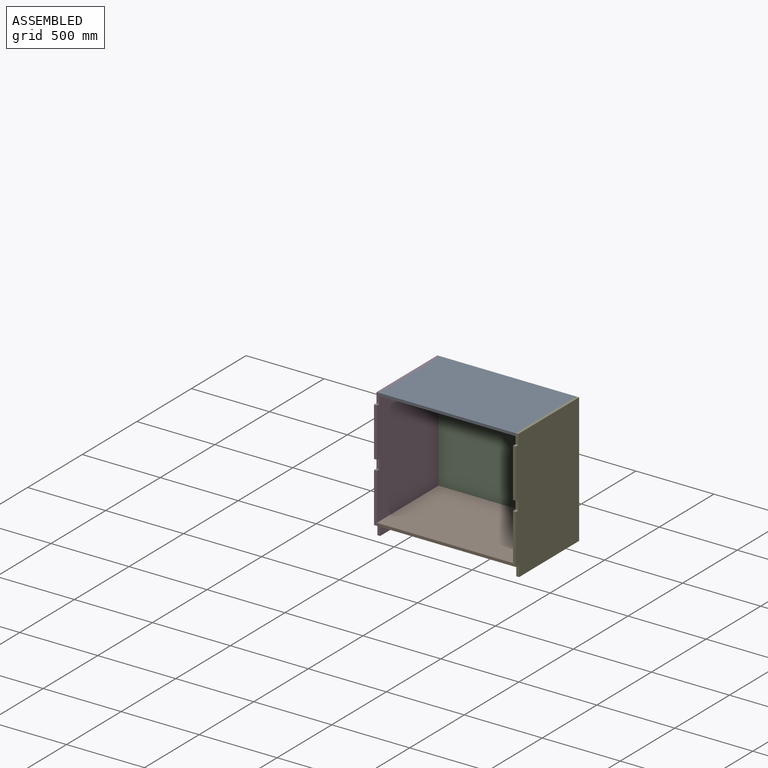
[diagram: assembled view]
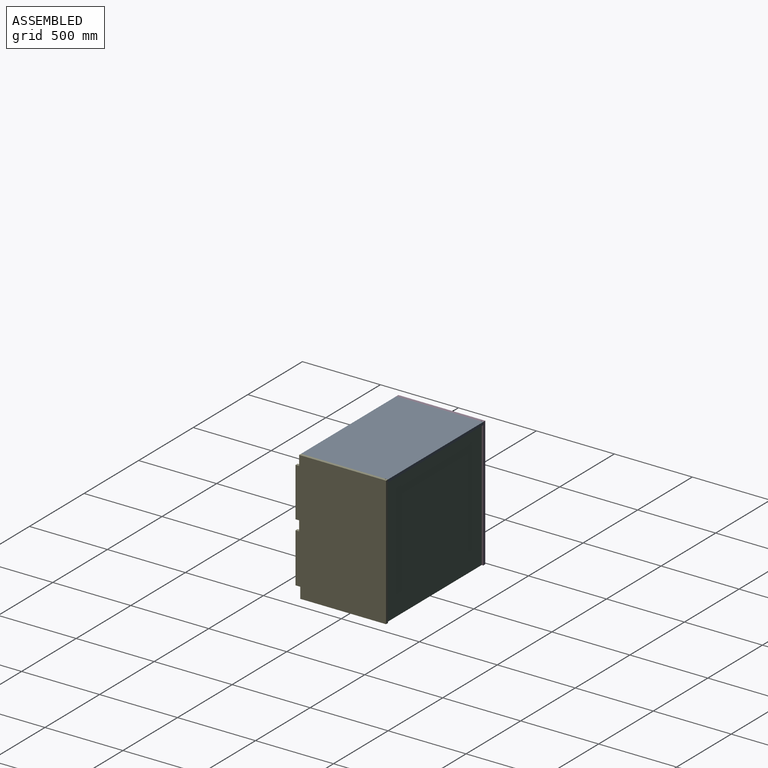
[diagram: assembled view, second angle]
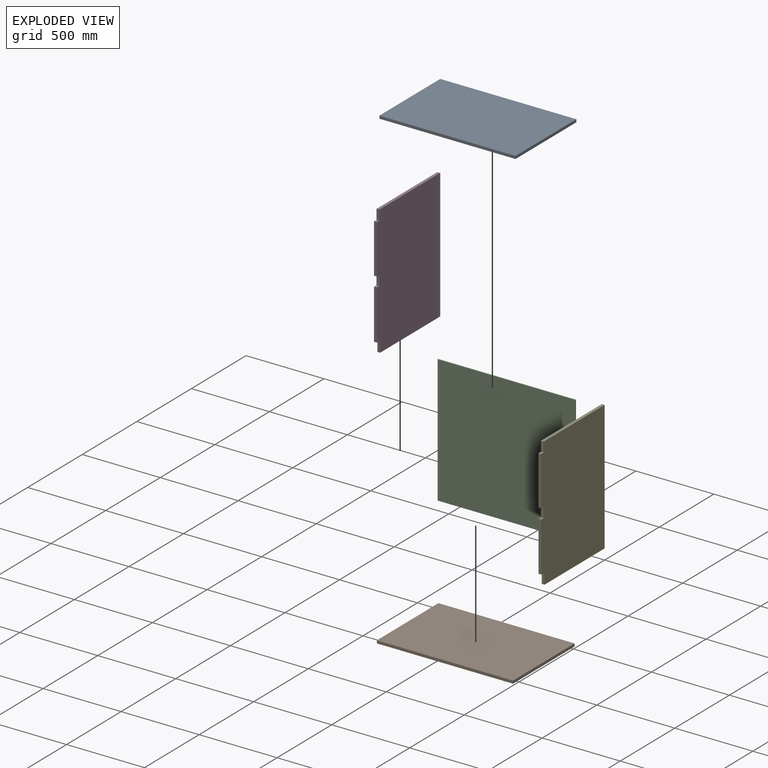
[diagram: exploded view]
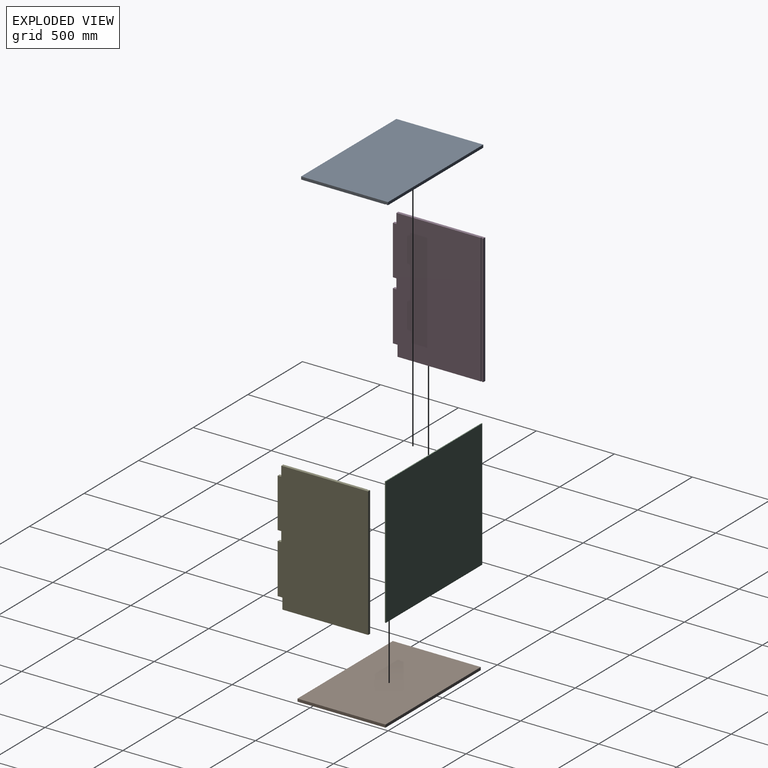
[diagram: exploded view, second angle]
ASSEMBLY  parts=5 mates=12
PART A: 10 faces, bbox 873x557x18 mm
  f0: plane 873x10mm, normal (0,0,-1), area 8730mm2, adj f1,f2,f3,f8
  f1: plane 557x18mm, normal (1,0,0), area 9996mm2, adj f0,f2,f4,f5,f6,f7,f8,f9
  f2: plane 873x18mm, normal (0,1,0), area 15714mm2, adj f0,f1,f3,f5
  f3: plane 557x18mm, normal (-1,0,0), area 9996mm2, adj f0,f2,f4,f5,f6,f7,f8,f9
  f4: plane 873x18mm, normal (0,-1,0), area 15714mm2, adj f1,f3,f5,f6
  f5: plane 873x557mm, normal (0,0,1), area 486261mm2, adj f1,f2,f3,f4
  f6: plane 873x541mm, normal (0,0,-1), area 472293mm2, adj f1,f3,f4,f7
  f7: plane 873x5mm, normal (0,1,0), area 4365mm2, adj f1,f3,f6,f9
  f8: plane 873x5mm, normal (0,-1,0), area 4365mm2, adj f0,f1,f3,f9
  f9: plane 873x6mm, normal (0,0,-1), area 5238mm2, adj f1,f3,f7,f8
PART B: 6 faces, bbox 873x564x18 mm
  f0: plane 564x18mm, normal (-1,0,0), area 10152mm2, adj f1,f3,f4,f5
  f1: plane 873x18mm, normal (0,-1,0), area 15714mm2, adj f0,f2,f4,f5
  f2: plane 564x18mm, normal (1,0,0), area 10152mm2, adj f1,f3,f4,f5
  f3: plane 873x18mm, normal (0,1,0), area 15714mm2, adj f0,f2,f4,f5
  f4: plane 873x564mm, normal (0,0,1), area 492372mm2, adj f0,f1,f2,f3
  f5: plane 873x564mm, normal (0,0,-1), area 492372mm2, adj f0,f1,f2,f3
PART C: 6 faces, bbox 883x6x819 mm
  f0: plane 819x6mm, normal (-1,0,0), area 4914mm2, adj f1,f3,f4,f5
  f1: plane 883x6mm, normal (0,0,-1), area 5298mm2, adj f0,f2,f4,f5
  f2: plane 819x6mm, normal (1,0,0), area 4914mm2, adj f1,f3,f4,f5
  f3: plane 883x6mm, normal (0,0,1), area 5298mm2, adj f0,f2,f4,f5
  f4: plane 883x819mm, normal (0,-1,0), area 723177mm2, adj f0,f1,f2,f3
  f5: plane 883x819mm, normal (0,1,0), area 723177mm2, adj f0,f1,f2,f3
PART D: 18 faces, bbox 18x580x832 mm
  f0: plane 319x18mm, normal (0,-1,0), area 5742mm2, adj f1,f2,f11,f16
  f1: plane 832x564mm, normal (1,0,0), area 464204mm2, adj f0,f3,f4,f6,f9,f11,f12,f13
  f2: plane 832x580mm, normal (-1,0,0), area 477516mm2, adj f0,f3,f4,f5,f6,f11,f12,f13
  f3: plane 315x18mm, normal (0,-1,0), area 5670mm2, adj f1,f2,f13,f15
  f4: plane 550x18mm, normal (0,0,-1), area 9870mm2, adj f1,f2,f5,f7,f8,f9,f10,f12
  f5: plane 832x18mm, normal (0,1,0), area 14976mm2, adj f2,f4,f6,f7
  f6: plane 557x18mm, normal (0,0,1), area 9996mm2, adj f1,f2,f5,f7,f8,f9,f10,f14
  f7: plane 832x10mm, normal (1,0,0), area 8320mm2, adj f4,f5,f6,f8
  f8: plane 832x5mm, normal (0,-1,0), area 4160mm2, adj f4,f6,f7,f10
  f9: plane 832x5mm, normal (0,1,0), area 4160mm2, adj f1,f4,f6,f10
  f10: plane 832x6mm, normal (1,0,0), area 4992mm2, adj f4,f6,f8,f9
  f11: plane 30x18mm, normal (0,0,-1), area 540mm2, adj f0,f1,f2,f12
  f12: plane 70x18mm, normal (0,-1,0), area 1260mm2, adj f1,f2,f4,f11
  f13: plane 23x18mm, normal (0,0,1), area 414mm2, adj f1,f2,f3,f14
  f14: plane 64x18mm, normal (0,-1,0), area 1152mm2, adj f1,f2,f6,f13
  f15: plane 23x18mm, normal (0,0,-1), area 414mm2, adj f1,f2,f3,f17
  f16: plane 23x18mm, normal (0,0,1), area 414mm2, adj f0,f1,f2,f17
  f17: plane 64x18mm, normal (0,-1,0), area 1152mm2, adj f1,f2,f15,f16
PART E: 18 faces, bbox 18x580x832 mm
  f0: plane 319x18mm, normal (0,-1,0), area 5742mm2, adj f1,f2,f11,f16
  f1: plane 832x564mm, normal (-1,0,0), area 464204mm2, adj f0,f3,f4,f6,f9,f11,f12,f13
  f2: plane 832x580mm, normal (1,0,0), area 477516mm2, adj f0,f3,f4,f5,f6,f11,f12,f13
  f3: plane 315x18mm, normal (0,-1,0), area 5670mm2, adj f1,f2,f13,f15
  f4: plane 550x18mm, normal (0,0,-1), area 9870mm2, adj f1,f2,f5,f7,f8,f9,f10,f12
  f5: plane 832x18mm, normal (0,1,0), area 14976mm2, adj f2,f4,f6,f7
  f6: plane 557x18mm, normal (0,0,1), area 9996mm2, adj f1,f2,f5,f7,f8,f9,f10,f14
  f7: plane 832x10mm, normal (-1,0,0), area 8320mm2, adj f4,f5,f6,f8
  f8: plane 832x5mm, normal (0,-1,0), area 4160mm2, adj f4,f6,f7,f10
  f9: plane 832x5mm, normal (0,1,0), area 4160mm2, adj f1,f4,f6,f10
  f10: plane 832x6mm, normal (-1,0,0), area 4992mm2, adj f4,f6,f8,f9
  f11: plane 30x18mm, normal (0,0,-1), area 540mm2, adj f0,f1,f2,f12
  f12: plane 70x18mm, normal (0,-1,0), area 1260mm2, adj f1,f2,f4,f11
  f13: plane 23x18mm, normal (0,0,1), area 414mm2, adj f1,f2,f3,f14
  f14: plane 64x18mm, normal (0,-1,0), area 1152mm2, adj f1,f2,f6,f13
  f15: plane 23x18mm, normal (0,0,-1), area 414mm2, adj f1,f2,f3,f17
  f16: plane 23x18mm, normal (0,0,1), area 414mm2, adj f0,f1,f2,f17
  f17: plane 64x18mm, normal (0,-1,0), area 1152mm2, adj f1,f2,f15,f16
PLACE A t=(-417.72,155.84,-627.57)mm
PLACE B t=(-362.67,300.05,-1371.57)mm
PLACE C t=(-5756.6,498.33,-737.26)mm
PLACE D t=(-1739.26,244.42,-2481.98)mm
PLACE E t=(30.74,244.42,-2481.98)mm
MATE planar A.f2 <-> D.f5  axis (0,1,0) through (-423.76,508.33,-618.57)mm
MATE planar C.f2 <-> E.f10  axis (1,0,0) through (17.74,495.33,-1032.07)mm
MATE planar B.f0 <-> D.f1  axis (-1,0,0) through (-860.26,210.33,-1362.57)mm
MATE planar A.f5 <-> D.f6  axis (0,0,1) through (-423.76,229.83,-609.57)mm
MATE planar A.f1 <-> E.f1  axis (1,0,0) through (12.74,229.04,-618.55)mm
MATE planar C.f3 <-> A.f9  axis (0,0,1) through (-423.76,495.33,-622.57)mm
MATE planar E.f6 <-> A.f5  axis (0,0,1) through (21.76,229.04,-609.57)mm
MATE planar C.f5 <-> E.f8  axis (0,1,0) through (-423.76,498.33,-1032.07)mm
MATE planar B.f1 <-> D.f0  axis (0,-1,0) through (-423.76,-71.67,-1362.57)mm
MATE planar E.f5 <-> A.f2  axis (0,1,0) through (21.74,508.33,-1025.57)mm
MATE planar B.f5 <-> E.f11  axis (0,0,-1) through (-423.76,210.33,-1371.57)mm
MATE planar A.f3 <-> D.f1  axis (-1,0,0) through (-860.26,229.04,-618.55)mm
